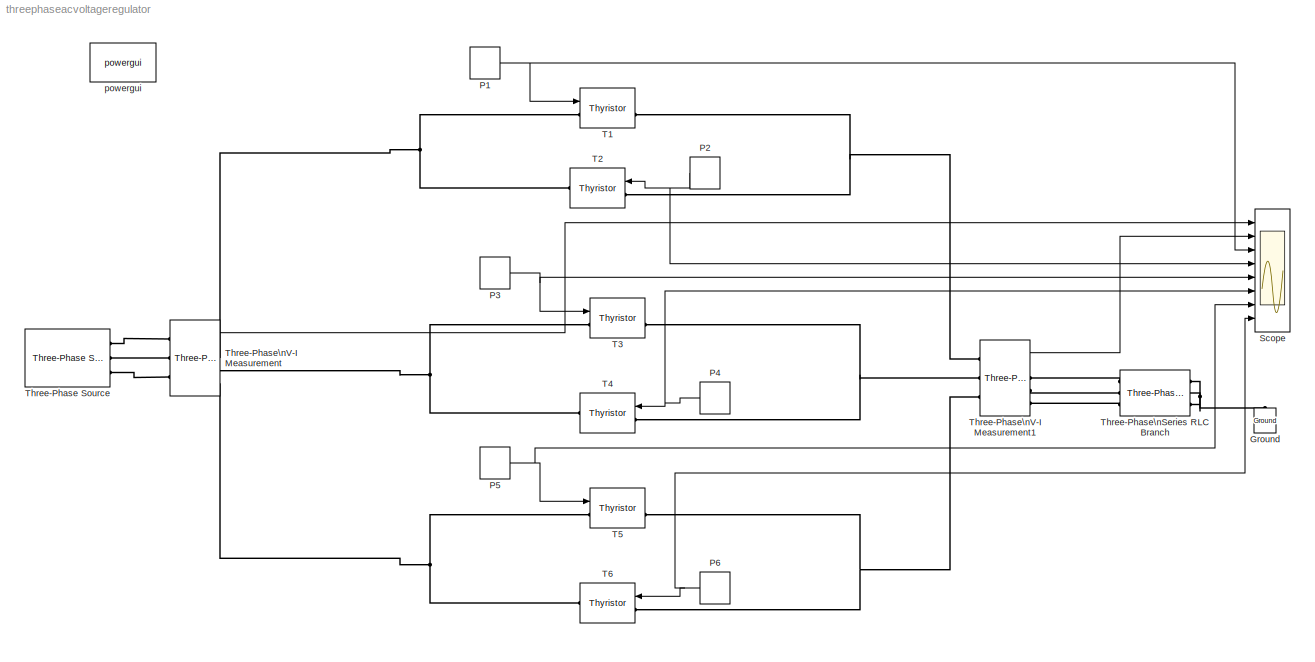
MODEL threephaseacvoltageregulator
KIND model
BLOCK [Reference] Ground  REF=powerlib/Elements/Ground
  DialogController = POWERSYS.PowerSysDialog
  LConnTagsString = a
  LeftPortType = p1
  PhysicalDomain = powersysdomain
  Ports = [0, 0, 0, 0, 0, 1]
  RightPortType = p1
  SID = 34
  SourceBlock = powerlib/Elements/Ground
  SourceType = Ground
  SubClassName = unknown
BLOCK [DiscretePulseGenerator] P1
  Amplitude = 1
  Period = 0.02
  PhaseDelay = 0.001
  Ports = [0, 1]
  PulseType = Time based
  PulseWidth = 5
  SID = 7
  SampleTime = 1
BLOCK [DiscretePulseGenerator] P2
  Amplitude = 1
  Period = 0.02
  PhaseDelay = 0.011
  Ports = [0, 1]
  PulseType = Time based
  PulseWidth = 5
  SID = 9
  SampleTime = 1
BLOCK [DiscretePulseGenerator] P3
  Amplitude = 1
  Period = 0.02
  PhaseDelay = 0.00766
  Ports = [0, 1]
  PulseType = Time based
  PulseWidth = 5
  SID = 15
  SampleTime = 1
BLOCK [DiscretePulseGenerator] P4
  Amplitude = 1
  Period = 0.02
  PhaseDelay = 0.01766
  Ports = [0, 1]
  PulseType = Time based
  PulseWidth = 5
  SID = 16
  SampleTime = 1
BLOCK [DiscretePulseGenerator] P5
  Amplitude = 1
  Period = 0.02
  PhaseDelay = 0.0143
  Ports = [0, 1]
  PulseType = Time based
  PulseWidth = 5
  SID = 23
  SampleTime = 1
BLOCK [DiscretePulseGenerator] P6
  Amplitude = 1
  Period = 0.02
  PhaseDelay = 0.0243
  Ports = [0, 1]
  PulseType = Time based
  PulseWidth = 5
  SID = 24
  SampleTime = 1
BLOCK [Scope] Scope
  DataFormat = StructureWithTime
  Floating = off
  NumInputPorts = 8
  Ports = [8]
  SID = 11
  SampleTime = 0
  SaveName = a
  SaveToWorkspace = on
  YMax = 5~5~5~5~5~5~5~5
  YMin = -5~-5~-5~-5~-5~-5~-5~-5
BLOCK [Reference] T1  REF=powerlib/Power\nElectronics/Thyristor
  Cs = 250e-9
  DialogController = POWERSYS.PowerSysDialog
  FunctionWithSeparateData = off
  IC = 0
  Lon = 0
  Measurements = on
  Ports = [1, 1, 0, 0, 0, 1, 1]
  RTWMemSecDataConstants = Inherit from model
  RTWMemSecDataInternal = Inherit from model
  RTWMemSecDataParameters = Inherit from model
  RTWMemSecFuncExecute = Inherit from model
  RTWMemSecFuncInitTerm = Inherit from model
  Ron = 0.001
  Rs = 500
  SID = 5
  ShowPortLabels = FromPortIcon
  SourceBlock = powerlib/Power\nElectronics/Thyristor
  SourceType = Thyristor
  SystemSampleTime = -1
  Vf = 0.1
BLOCK [Reference] T2  REF=powerlib/Power\nElectronics/Thyristor
  Cs = 250e-9
  DialogController = POWERSYS.PowerSysDialog
  FunctionWithSeparateData = off
  IC = 0
  Lon = 0
  Measurements = off
  Ports = [1, 0, 0, 0, 0, 1, 1]
  RTWMemSecDataConstants = Inherit from model
  RTWMemSecDataInternal = Inherit from model
  RTWMemSecDataParameters = Inherit from model
  RTWMemSecFuncExecute = Inherit from model
  RTWMemSecFuncInitTerm = Inherit from model
  Ron = 0.001
  Rs = 500
  SID = 6
  ShowPortLabels = FromPortIcon
  SourceBlock = powerlib/Power\nElectronics/Thyristor
  SourceType = Thyristor
  SystemSampleTime = -1
  Vf = 0.01
BLOCK [Reference] T3  REF=powerlib/Power\nElectronics/Thyristor
  Cs = 250e-9
  DialogController = POWERSYS.PowerSysDialog
  FunctionWithSeparateData = off
  IC = 0
  Lon = 0
  Measurements = on
  Ports = [1, 1, 0, 0, 0, 1, 1]
  RTWMemSecDataConstants = Inherit from model
  RTWMemSecDataInternal = Inherit from model
  RTWMemSecDataParameters = Inherit from model
  RTWMemSecFuncExecute = Inherit from model
  RTWMemSecFuncInitTerm = Inherit from model
  Ron = 0.001
  Rs = 500
  SID = 17
  ShowPortLabels = FromPortIcon
  SourceBlock = powerlib/Power\nElectronics/Thyristor
  SourceType = Thyristor
  SystemSampleTime = -1
  Vf = 0.1
BLOCK [Reference] T4  REF=powerlib/Power\nElectronics/Thyristor
  Cs = 250e-9
  DialogController = POWERSYS.PowerSysDialog
  FunctionWithSeparateData = off
  IC = 0
  Lon = 0
  Measurements = off
  Ports = [1, 0, 0, 0, 0, 1, 1]
  RTWMemSecDataConstants = Inherit from model
  RTWMemSecDataInternal = Inherit from model
  RTWMemSecDataParameters = Inherit from model
  RTWMemSecFuncExecute = Inherit from model
  RTWMemSecFuncInitTerm = Inherit from model
  Ron = 0.001
  Rs = 500
  SID = 18
  ShowPortLabels = FromPortIcon
  SourceBlock = powerlib/Power\nElectronics/Thyristor
  SourceType = Thyristor
  SystemSampleTime = -1
  Vf = 0.01
BLOCK [Reference] T5  REF=powerlib/Power\nElectronics/Thyristor
  Cs = 250e-9
  DialogController = POWERSYS.PowerSysDialog
  FunctionWithSeparateData = off
  IC = 0
  Lon = 0
  Measurements = on
  Ports = [1, 1, 0, 0, 0, 1, 1]
  RTWMemSecDataConstants = Inherit from model
  RTWMemSecDataInternal = Inherit from model
  RTWMemSecDataParameters = Inherit from model
  RTWMemSecFuncExecute = Inherit from model
  RTWMemSecFuncInitTerm = Inherit from model
  Ron = 0.001
  Rs = 500
  SID = 25
  ShowPortLabels = FromPortIcon
  SourceBlock = powerlib/Power\nElectronics/Thyristor
  SourceType = Thyristor
  SystemSampleTime = -1
  Vf = 0.1
BLOCK [Reference] T6  REF=powerlib/Power\nElectronics/Thyristor
  Cs = 250e-9
  DialogController = POWERSYS.PowerSysDialog
  FunctionWithSeparateData = off
  IC = 0
  Lon = 0
  Measurements = off
  Ports = [1, 0, 0, 0, 0, 1, 1]
  RTWMemSecDataConstants = Inherit from model
  RTWMemSecDataInternal = Inherit from model
  RTWMemSecDataParameters = Inherit from model
  RTWMemSecFuncExecute = Inherit from model
  RTWMemSecFuncInitTerm = Inherit from model
  Ron = 0.001
  Rs = 500
  SID = 26
  ShowPortLabels = FromPortIcon
  SourceBlock = powerlib/Power\nElectronics/Thyristor
  SourceType = Thyristor
  SystemSampleTime = -1
  Vf = 0.01
BLOCK [Reference] Three-Phase Source  REF=powerlib/Electrical\nSources/Three-Phase Source
  BaseVoltage = 25e3
  DialogController = POWERSYS.PowerSysDialog
  Frequency = 50
  FunctionWithSeparateData = off
  Inductance = 0
  InternalConnection = Yg
  PhaseAngle = 0
  Ports = [0, 0, 0, 0, 0, 0, 3]
  RTWMemSecDataConstants = Inherit from model
  RTWMemSecDataInternal = Inherit from model
  RTWMemSecDataParameters = Inherit from model
  RTWMemSecFuncExecute = Inherit from model
  RTWMemSecFuncInitTerm = Inherit from model
  Resistance = 0
  SID = 14
  ShortCircuitLevel = 100e6
  ShowPortLabels = FromPortIcon
  SourceBlock = powerlib/Electrical\nSources/Three-Phase Source
  SourceType = Three-Phase Source
  SpecifyImpedance = off
  SystemSampleTime = -1
  Voltage = 100
  XRratio = 7
BLOCK [Reference] Three-Phase\nSeries RLC Branch  REF=powerlib/Elements/Three-Phase\nSeries RLC Branch
  AttributesFormatString = \\n
  BranchType = R
  Capacitance = 1e-6
  DialogController = POWERSYS.PowerSysDialog
  Inductance = 1e-3
  LConnTagsString = A|B|C
  LeftPortType = p1
  Measurements = None
  PhysicalDomain = powersysdomain
  Ports = [0, 0, 0, 0, 0, 3, 3]
  RConnTagsString = A|B|C
  Resistance = 5
  RightPortType = p1
  SID = 33
  SourceBlock = powerlib/Elements/Three-Phase\nSeries RLC Branch
  SourceType = Three-Phase Series RLC Branch
  SubClassName = unknown
BLOCK [Reference] Three-Phase\nV-I Measurement  REF=powerlib/Measurements/Three-Phase\nV-I Measurement
  CurrentMeasurement = yes
  DialogController = POWERSYS.PowerSysDialog
  FunctionWithSeparateData = off
  Ipu = off
  LabelI = Iabc
  LabelV = Vabc
  OutputType = Complex
  PSBequivalent = 0
  Pbase = 100e6
  PhasorSimulation = off
  Ports = [0, 2, 0, 0, 0, 3, 3]
  RTWMemSecDataConstants = Inherit from model
  RTWMemSecDataInternal = Inherit from model
  RTWMemSecDataParameters = Inherit from model
  RTWMemSecFuncExecute = Inherit from model
  RTWMemSecFuncInitTerm = Inherit from model
  SID = 27
  SetLabelI = off
  SetLabelV = off
  ShowPortLabels = FromPortIcon
  SourceBlock = powerlib/Measurements/Three-Phase\nV-I Measurement
  SourceType = Three-Phase VI Measurement
  SystemSampleTime = -1
  Vbase = 500e3
  VoltageMeasurement = phase-to-ground
  Vpu = off
  VpuLL = off
BLOCK [Reference] Three-Phase\nV-I Measurement1  REF=powerlib/Measurements/Three-Phase\nV-I Measurement
  CurrentMeasurement = yes
  DialogController = POWERSYS.PowerSysDialog
  FunctionWithSeparateData = off
  Ipu = off
  LabelI = Iabc
  LabelV = Vabc
  OutputType = Complex
  PSBequivalent = 0
  Pbase = 100e6
  PhasorSimulation = off
  Ports = [0, 2, 0, 0, 0, 3, 3]
  RTWMemSecDataConstants = Inherit from model
  RTWMemSecDataInternal = Inherit from model
  RTWMemSecDataParameters = Inherit from model
  RTWMemSecFuncExecute = Inherit from model
  RTWMemSecFuncInitTerm = Inherit from model
  SID = 28
  SetLabelI = off
  SetLabelV = off
  ShowPortLabels = FromPortIcon
  SourceBlock = powerlib/Measurements/Three-Phase\nV-I Measurement
  SourceType = Three-Phase VI Measurement
  SystemSampleTime = -1
  Vbase = 500e3
  VoltageMeasurement = phase-to-ground
  Vpu = off
  VpuLL = off
BLOCK [Reference] powergui  REF=powerlib/powergui
  DisableRonSwitches = off
  DisableSnubberDevices = off
  DisableVfSwitches = off
  DisplayEquations = off
  DisplayStyle = 1
  EnableUseOfTLC = off
  FreqAxis = off
  FunctionMessages = off
  FunctionWithSeparateData = off
  HookPort = off
  Interpol = off
  MaxFrequency = 1000
  Ports = []
  Priority = 1
  RTWMemSecDataConstants = Inherit from model
  RTWMemSecDataInternal = Inherit from model
  RTWMemSecDataParameters = Inherit from model
  RTWMemSecFuncExecute = Inherit from model
  RTWMemSecFuncInitTerm = Inherit from model
  ResistiveCurrentMeasurement = off
  RestoreLinks = warning
  SID = 12
  SPID = off
  SampleTime = 50e-6
  ShowGrid = off
  ShowPortLabels = FromPortIcon
  SourceBlock = powerlib/powergui
  SourceType = PSB option menu block
  StartTime = 0.0
  SwTol = 0
  SystemSampleTime = -1
  UserDataPersistent = on
  Xlog = on
  Ylog = off
  ZoomFFT = off
  cycles = 1
  display = off
  echomessages = off
  frequency = 60
  frequencyindice = 50
  frequencyindicesteady = 1
  methode = off
  save = off
  variable = ZData
  x0status = blocks
NET P1:1 -> Scope:3, T1:1
NET P2:1 -> Scope:4, T2:1
NET P3:1 -> Scope:5, T3:1
NET P4:1 -> Scope:6, T4:1
NET P5:1 -> Scope:7, T5:1
NET P6:1 -> Scope:8, T6:1
LINE Three-Phase\nV-I Measurement1:1 -> Scope:2
LINE Three-Phase\nV-I Measurement:1 -> Scope:1
PNET net1: Ground:LConn1 -- Three-Phase\nSeries RLC Branch:RConn1 -- Three-Phase\nSeries RLC Branch:RConn2 -- Three-Phase\nSeries RLC Branch:RConn3
PNET net2: T1:LConn1 -- T2:RConn1 -- Three-Phase\nV-I Measurement:RConn1
PNET net3: T1:RConn1 -- T2:LConn1 -- Three-Phase\nV-I Measurement1:LConn1
PNET net4: T3:LConn1 -- T4:RConn1 -- Three-Phase\nV-I Measurement:RConn2
PNET net5: T3:RConn1 -- T4:LConn1 -- Three-Phase\nV-I Measurement1:LConn2
PNET net6: T5:LConn1 -- T6:RConn1 -- Three-Phase\nV-I Measurement:RConn3
PNET net7: T5:RConn1 -- T6:LConn1 -- Three-Phase\nV-I Measurement1:LConn3
PLINE Three-Phase Source:RConn1 -- Three-Phase\nV-I Measurement:LConn1
PLINE Three-Phase Source:RConn2 -- Three-Phase\nV-I Measurement:LConn2
PLINE Three-Phase Source:RConn3 -- Three-Phase\nV-I Measurement:LConn3
PLINE Three-Phase\nSeries RLC Branch:LConn1 -- Three-Phase\nV-I Measurement1:RConn1
PLINE Three-Phase\nSeries RLC Branch:LConn2 -- Three-Phase\nV-I Measurement1:RConn2
PLINE Three-Phase\nSeries RLC Branch:LConn3 -- Three-Phase\nV-I Measurement1:RConn3
note: NET lines group one-source signal fan-out (src -> all destinations, sorted); 1:1 wires keep LINE; PNET lines group multi-terminal physical nets as a canonical sorted terminal list (undirected conserving connections); 2-terminal nets keep the pairwise PLINE form
